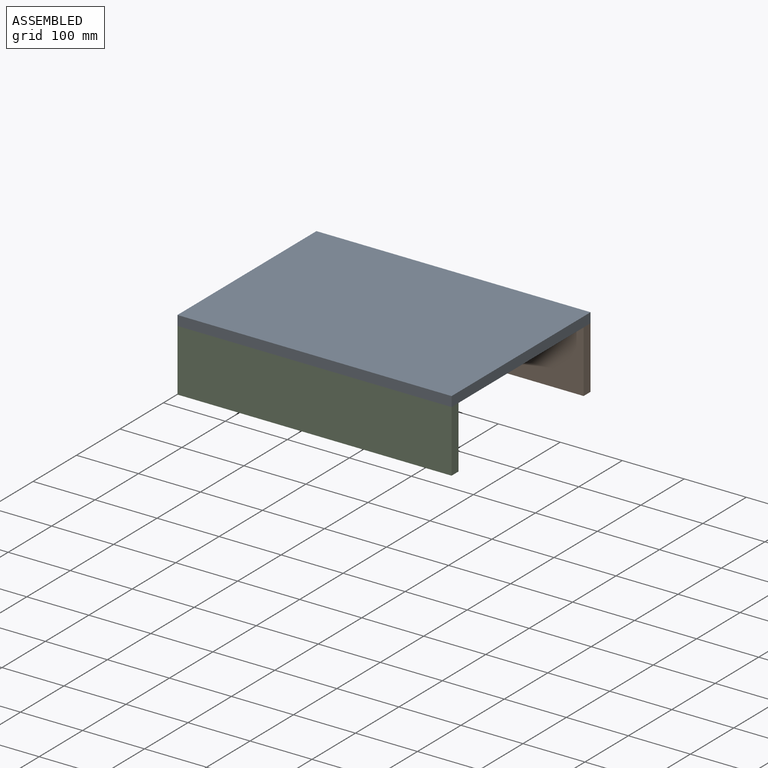
[diagram: assembled view]
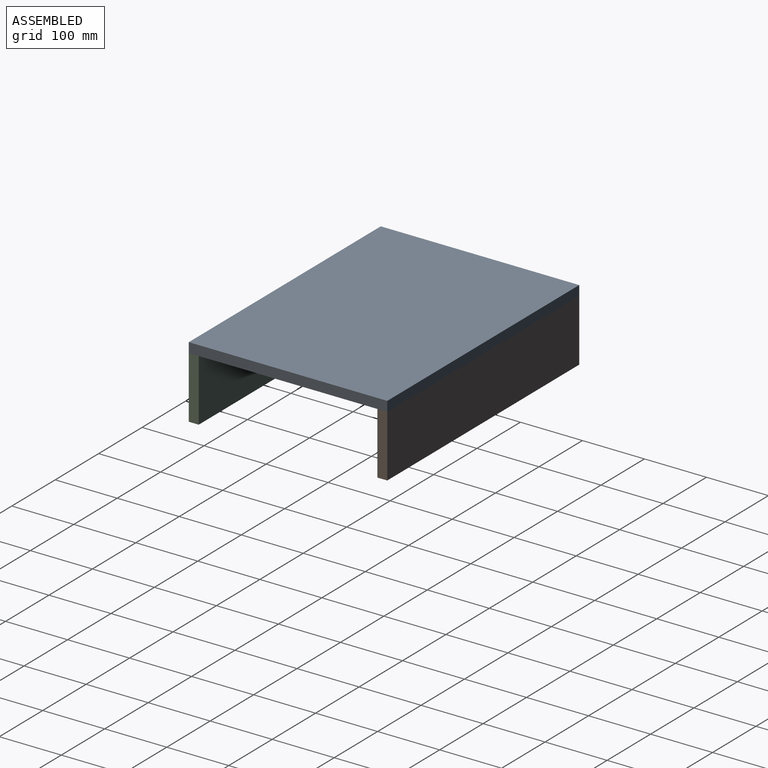
[diagram: assembled view, second angle]
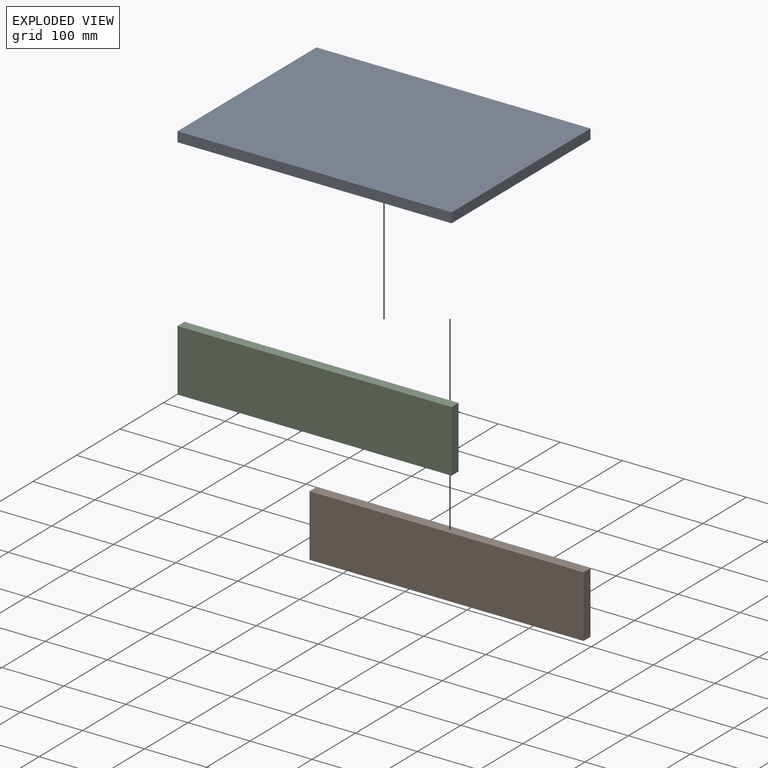
[diagram: exploded view]
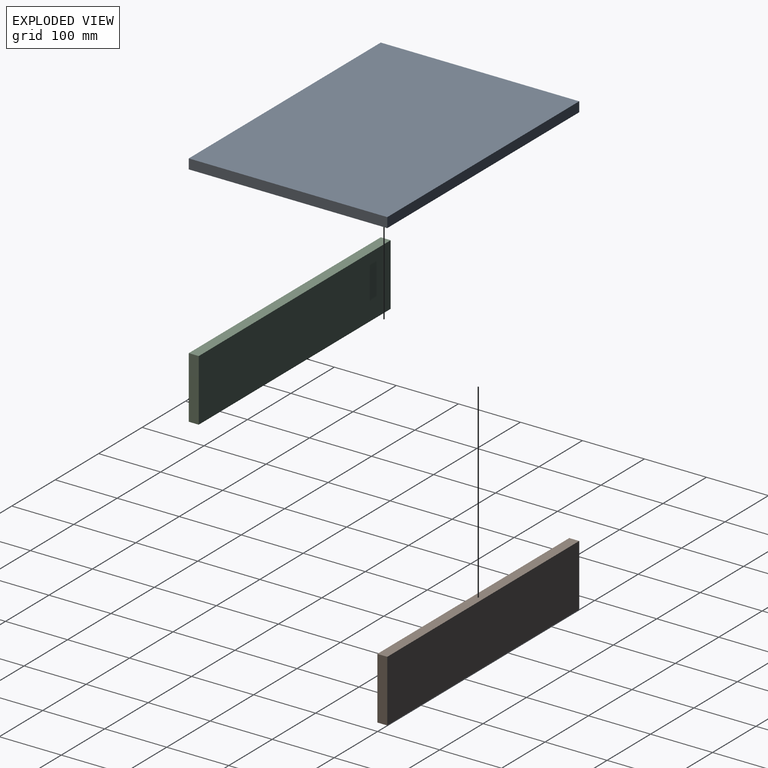
[diagram: exploded view, second angle]
ASSEMBLY  parts=3 mates=2
PART A: 6 faces, bbox 320x442x16 mm
  f0: plane 442x320mm, normal (0,0,1), area 141440mm2, adj f1,f3,f4,f5
  f1: plane 442x16mm, normal (-1,0,0), area 7072mm2, adj f0,f2,f4,f5
  f2: plane 442x320mm, normal (0,0,-1), area 141440mm2, adj f1,f3,f4,f5
  f3: plane 442x16mm, normal (1,0,0), area 7072mm2, adj f0,f2,f4,f5
  f4: plane 320x16mm, normal (0,-1,0), area 5120mm2, adj f0,f1,f2,f3
  f5: plane 320x16mm, normal (0,1,0), area 5120mm2, adj f0,f1,f2,f3
PART B: 6 faces, bbox 100x442x16 mm
  f0: plane 442x16mm, normal (1,0,0), area 7072mm2, adj f1,f3,f4,f5
  f1: plane 442x100mm, normal (0,0,-1), area 44200mm2, adj f0,f2,f4,f5
  f2: plane 442x16mm, normal (-1,0,0), area 7072mm2, adj f1,f3,f4,f5
  f3: plane 442x100mm, normal (0,0,1), area 44200mm2, adj f0,f2,f4,f5
  f4: plane 100x16mm, normal (0,1,0), area 1600mm2, adj f0,f1,f2,f3
  f5: plane 100x16mm, normal (0,-1,0), area 1600mm2, adj f0,f1,f2,f3
PART C: 6 faces, bbox 100x442x16 mm
  f0: plane 442x16mm, normal (1,0,0), area 7072mm2, adj f1,f3,f4,f5
  f1: plane 442x100mm, normal (0,0,-1), area 44200mm2, adj f0,f2,f4,f5
  f2: plane 442x16mm, normal (-1,0,0), area 7072mm2, adj f1,f3,f4,f5
  f3: plane 442x100mm, normal (0,0,1), area 44200mm2, adj f0,f2,f4,f5
  f4: plane 100x16mm, normal (0,1,0), area 1600mm2, adj f0,f1,f2,f3
  f5: plane 100x16mm, normal (0,-1,0), area 1600mm2, adj f0,f1,f2,f3
PLACE A rot(axis=(-0.71,0.71,0),180deg) t=(-150,-262.94,-33.45)mm
PLACE B rot(axis=(-0.58,-0.58,-0.58),120deg) t=(-150,341.72,64.04)mm
PLACE C rot(axis=(0.58,0.58,-0.58),120deg) t=(-150,-198.72,-180.04)mm
MATE fastened A.f0 <-> B.f0  axis (0,0,-1) through (71,210,-8)mm
MATE fastened A.f0 <-> C.f2  axis (0,0,-1) through (71,-110,-8)mm
